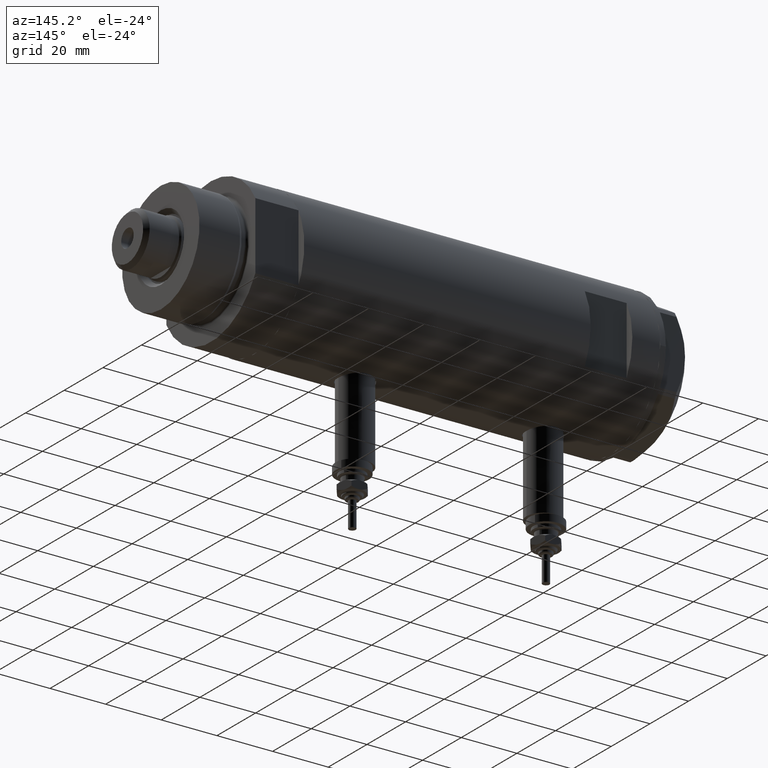
[diagram: clean part render]
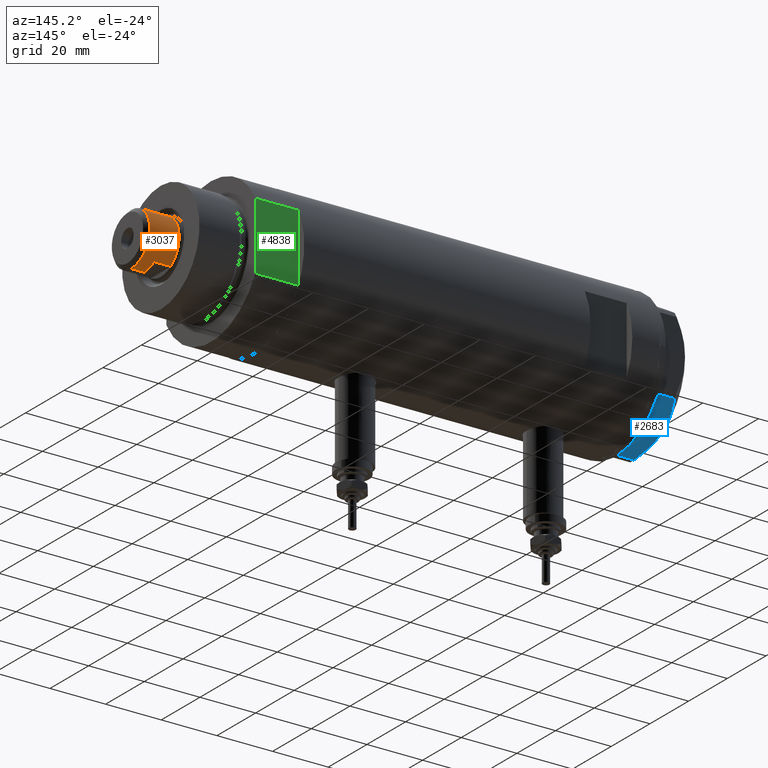
[diagram: same view with three faces highlighted in distinct colors, each labeled with its STEP entity id]
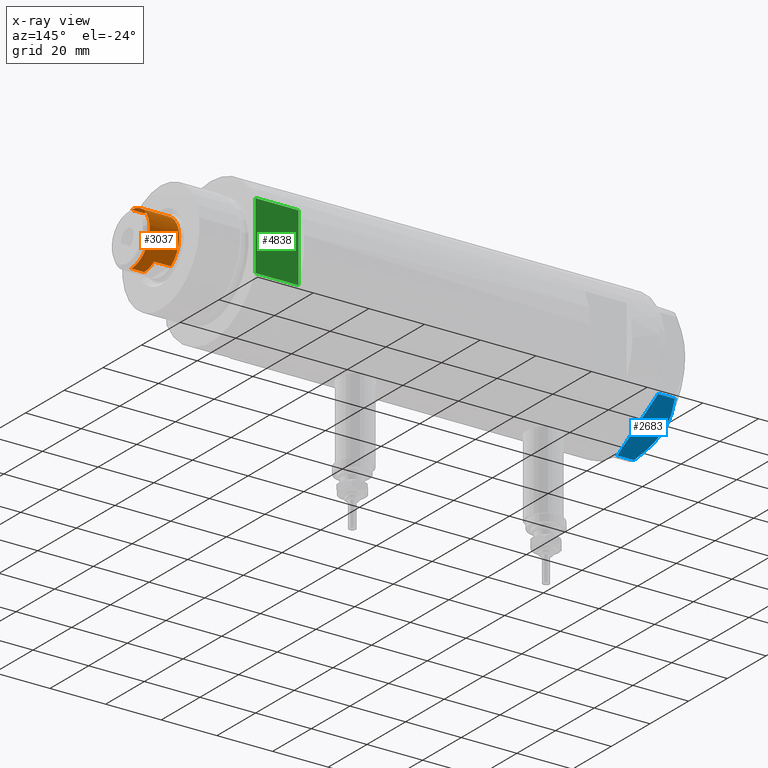
[diagram: x-ray of the same camera — body ghosted, the three highlighted faces saturated]
A machine part, auxiliary view with three faces highlighted in distinct colors.
The next image is the same camera in x-ray (body ghosted, the three faces saturated) — at least one of them is partly hidden behind the body in this view.
Their STEP definitions:

[orange] entity #3037 — the highlighted cylindrical surface (edge-blend (fillet) strip) has radius 9.5 mm, axis along (-1, -0, 0).
#23 = CYLINDRICAL_SURFACE ( 'NONE', #3996, 9.500000000000001776 ) ;
#81 = LINE ( 'NONE', #1457, #4299 ) ;
#235 = DIRECTION ( 'NONE',  ( 0.000000000000000000, 0.000000000000000000, -1.000000000000000000 ) ) ;
#272 = CIRCLE ( 'NONE', #3850, 9.500000000000000000 ) ;
#284 = CARTESIAN_POINT ( 'NONE',  ( 0.000000000000000000, 0.000000000000000000, 137.5999999999999943 ) ) ;
#561 = VERTEX_POINT ( 'NONE', #5441 ) ;
#659 = EDGE_CURVE ( 'NONE', #561, #1253, #2412, .T. ) ;
#689 = CARTESIAN_POINT ( 'NONE',  ( 0.000000000000000000, 0.000000000000000000, 143.5999999999999943 ) ) ;
#694 = ORIENTED_EDGE ( 'NONE', *, *, #2219, .T. ) ;
#917 = VERTEX_POINT ( 'NONE', #3805 ) ;
#967 = CARTESIAN_POINT ( 'NONE',  ( -7.982950582334829015, 5.150000000000015454, 137.5999999999999943 ) ) ;
#1253 = VERTEX_POINT ( 'NONE', #2085 ) ;
#1262 = DIRECTION ( 'NONE',  ( -0.000000000000000000, -0.000000000000000000, -1.000000000000000000 ) ) ;
#1457 = CARTESIAN_POINT ( 'NONE',  ( -7.982950582334830791, 5.149999999999999467, 143.5999999999999943 ) ) ;
#1526 = FACE_OUTER_BOUND ( 'NONE', #1671, .T. ) ;
#1630 = CARTESIAN_POINT ( 'NONE',  ( 0.000000000000000000, 0.000000000000000000, 143.5999999999999943 ) ) ;
#1649 = VERTEX_POINT ( 'NONE', #4833 ) ;
#1670 = CARTESIAN_POINT ( 'NONE',  ( 0.000000000000000000, 0.000000000000000000, 148.1999999999999886 ) ) ;
#1671 = EDGE_LOOP ( 'NONE', ( #4125, #6309, #694, #6164, #3651, #2536, #2320, #5703 ) ) ;
#1681 = LINE ( 'NONE', #4090, #2248 ) ;
#1713 = VERTEX_POINT ( 'NONE', #4072 ) ;
#1758 = CIRCLE ( 'NONE', #4935, 9.500000000000000000 ) ;
#1777 = CARTESIAN_POINT ( 'NONE',  ( 7.982950582334830791, 5.149999999999999467, 143.5999999999999943 ) ) ;
#1860 = EDGE_CURVE ( 'NONE', #1713, #1964, #2811, .T. ) ;
#1925 = EDGE_CURVE ( 'NONE', #561, #1649, #1986, .T. ) ;
#1941 = VERTEX_POINT ( 'NONE', #2945 ) ;
#1964 = VERTEX_POINT ( 'NONE', #967 ) ;
#1986 = LINE ( 'NONE', #4370, #2716 ) ;
#2085 = CARTESIAN_POINT ( 'NONE',  ( 9.500000000000001776, 1.163414459189985682E-15, 148.1999999999999886 ) ) ;
#2219 = EDGE_CURVE ( 'NONE', #1941, #5459, #272, .T. ) ;
#2248 = VECTOR ( 'NONE', #1262, 1000.000000000000000 ) ;
#2320 = ORIENTED_EDGE ( 'NONE', *, *, #2533, .T. ) ;
#2412 = CIRCLE ( 'NONE', #5171, 9.500000000000001776 ) ;
#2486 = CARTESIAN_POINT ( 'NONE',  ( 0.000000000000000000, 0.000000000000000000, 143.5999999999999943 ) ) ;
#2520 = DIRECTION ( 'NONE',  ( -0.000000000000000000, -0.000000000000000000, -1.000000000000000000 ) ) ;
#2533 = EDGE_CURVE ( 'NONE', #917, #1649, #1758, .T. ) ;
#2536 = ORIENTED_EDGE ( 'NONE', *, *, #3473, .F. ) ;
#2716 = VECTOR ( 'NONE', #4500, 1000.000000000000000 ) ;
#2811 = CIRCLE ( 'NONE', #4459, 9.500000000000008882 ) ;
#2945 = CARTESIAN_POINT ( 'NONE',  ( 9.500000000000000000, 1.163414459189985485E-15, 143.5999999999999943 ) ) ;
#3037 = ADVANCED_FACE ( 'NONE', ( #1526 ), #23, .T. ) ;
#3058 = EDGE_CURVE ( 'NONE', #5459, #1713, #4602, .T. ) ;
#3172 = VECTOR ( 'NONE', #5139, 1000.000000000000000 ) ;
#3461 = DIRECTION ( 'NONE',  ( 0.000000000000000000, 0.000000000000000000, 1.000000000000000000 ) ) ;
#3473 = EDGE_CURVE ( 'NONE', #917, #1964, #81, .T. ) ;
#3651 = ORIENTED_EDGE ( 'NONE', *, *, #1860, .T. ) ;
#3805 = CARTESIAN_POINT ( 'NONE',  ( -7.982950582334830791, 5.149999999999999467, 143.5999999999999943 ) ) ;
#3850 = AXIS2_PLACEMENT_3D ( 'NONE', #689, #4564, #5512 ) ;
#3996 = AXIS2_PLACEMENT_3D ( 'NONE', #2486, #2520, #4445 ) ;
#4072 = CARTESIAN_POINT ( 'NONE',  ( 7.982950582334830791, 5.149999999999999467, 137.5999999999999943 ) ) ;
#4090 = CARTESIAN_POINT ( 'NONE',  ( 9.500000000000001776, 1.163414459189985682E-15, 143.5999999999999943 ) ) ;
#4125 = ORIENTED_EDGE ( 'NONE', *, *, #659, .T. ) ;
#4299 = VECTOR ( 'NONE', #5009, 1000.000000000000000 ) ;
#4370 = CARTESIAN_POINT ( 'NONE',  ( -9.500000000000001776, 0.000000000000000000, 143.5999999999999943 ) ) ;
#4445 = DIRECTION ( 'NONE',  ( -1.000000000000000000, 0.000000000000000000, 0.000000000000000000 ) ) ;
#4459 = AXIS2_PLACEMENT_3D ( 'NONE', #284, #5170, #5143 ) ;
#4500 = DIRECTION ( 'NONE',  ( -0.000000000000000000, -0.000000000000000000, -1.000000000000000000 ) ) ;
#4564 = DIRECTION ( 'NONE',  ( 0.000000000000000000, 0.000000000000000000, 1.000000000000000000 ) ) ;
#4602 = LINE ( 'NONE', #1777, #3172 ) ;
#4833 = CARTESIAN_POINT ( 'NONE',  ( -9.500000000000000000, 0.000000000000000000, 143.5999999999999943 ) ) ;
#4935 = AXIS2_PLACEMENT_3D ( 'NONE', #1630, #3461, #5914 ) ;
#5005 = CARTESIAN_POINT ( 'NONE',  ( 7.982950582334830791, 5.149999999999999467, 143.5999999999999943 ) ) ;
#5009 = DIRECTION ( 'NONE',  ( -0.000000000000000000, -0.000000000000000000, -1.000000000000000000 ) ) ;
#5139 = DIRECTION ( 'NONE',  ( -0.000000000000000000, -0.000000000000000000, -1.000000000000000000 ) ) ;
#5143 = DIRECTION ( 'NONE',  ( 1.000000000000000000, 0.000000000000000000, 0.000000000000000000 ) ) ;
#5170 = DIRECTION ( 'NONE',  ( 0.000000000000000000, 0.000000000000000000, 1.000000000000000000 ) ) ;
#5171 = AXIS2_PLACEMENT_3D ( 'NONE', #1670, #235, #6053 ) ;
#5182 = EDGE_CURVE ( 'NONE', #1253, #1941, #1681, .T. ) ;
#5441 = CARTESIAN_POINT ( 'NONE',  ( -9.500000000000001776, 0.000000000000000000, 148.1999999999999886 ) ) ;
#5459 = VERTEX_POINT ( 'NONE', #5005 ) ;
#5512 = DIRECTION ( 'NONE',  ( 1.000000000000000000, 0.000000000000000000, 0.000000000000000000 ) ) ;
#5703 = ORIENTED_EDGE ( 'NONE', *, *, #1925, .F. ) ;
#5914 = DIRECTION ( 'NONE',  ( 1.000000000000000000, 0.000000000000000000, 0.000000000000000000 ) ) ;
#6053 = DIRECTION ( 'NONE',  ( 1.000000000000000000, 0.000000000000000000, 0.000000000000000000 ) ) ;
#6164 = ORIENTED_EDGE ( 'NONE', *, *, #3058, .T. ) ;
#6309 = ORIENTED_EDGE ( 'NONE', *, *, #5182, .T. ) ;

[blue] entity #2683 — the highlighted planar face has unit normal (0, -0.5, 0.866).
#195 = ORIENTED_EDGE ( 'NONE', *, *, #4334, .T. ) ;
#316 = DIRECTION ( 'NONE',  ( -0.4999999999999949485, -0.8660254037844415942, 0.000000000000000000 ) ) ;
#352 = LINE ( 'NONE', #1371, #3285 ) ;
#403 = CARTESIAN_POINT ( 'NONE',  ( 0.9699484522385767304, 25.99811238272274849, 5.983800287807627960 ) ) ;
#559 = CARTESIAN_POINT ( 'NONE',  ( 0.9999999999999297229, 25.98076211353316722, 0.000000000000000000 ) ) ;
#655 = CARTESIAN_POINT ( 'NONE',  ( 9.678244919010086988, 20.97037507344920826, 9.000000000000001776 ) ) ;
#680 = VECTOR ( 'NONE', #3693, 1000.000000000000000 ) ;
#687 = CARTESIAN_POINT ( 'NONE',  ( 5.229981517798067081, 23.53858114556529912, 7.892128867758392730 ) ) ;
#791 = PLANE ( 'NONE',  #3396 ) ;
#902 = ORIENTED_EDGE ( 'NONE', *, *, #2596, .F. ) ;
#1018 = CARTESIAN_POINT ( 'NONE',  ( 11.95865151389051917, 19.65378171203322566, 9.000000000000005329 ) ) ;
#1116 = VERTEX_POINT ( 'NONE', #2904 ) ;
#1122 = LINE ( 'NONE', #5951, #1322 ) ;
#1131 = CARTESIAN_POINT ( 'NONE',  ( 3.925137811030050994, 24.29193301091819635, 7.397272853991373687 ) ) ;
#1157 = CARTESIAN_POINT ( 'NONE',  ( 15.16323225988329959, 17.80361615569442790, 8.637313967156861949 ) ) ;
#1221 = CARTESIAN_POINT ( 'NONE',  ( 5.671686373602799591, 23.28356272816407824, 8.040681765829278405 ) ) ;
#1259 = LINE ( 'NONE', #3274, #2565 ) ;
#1322 = VECTOR ( 'NONE', #1571, 999.9999999999998863 ) ;
#1371 = CARTESIAN_POINT ( 'NONE',  ( 22.03005154776124286, 13.83905619136163168, 9.000000000000000000 ) ) ;
#1492 = VERTEX_POINT ( 'NONE', #3777 ) ;
#1512 = ORIENTED_EDGE ( 'NONE', *, *, #2335, .T. ) ;
#1534 = CARTESIAN_POINT ( 'NONE',  ( 16.05322244309623869, 17.28978008384030929, 8.426899937603700153 ) ) ;
#1571 = DIRECTION ( 'NONE',  ( -0.8660254037844415942, 0.4999999999999949485, 0.000000000000000000 ) ) ;
#1612 = CARTESIAN_POINT ( 'NONE',  ( 2.640413878806739945, 25.03366871902167290, 6.844201024438365089 ) ) ;
#1690 = CARTESIAN_POINT ( 'NONE',  ( 22.03005154776124286, 13.83905619136163168, 0.000000000000000000 ) ) ;
#1705 = CARTESIAN_POINT ( 'NONE',  ( 11.49999999999990408, 19.91858428704219364, 9.000000000000000000 ) ) ;
#1733 = CARTESIAN_POINT ( 'NONE',  ( 0.9699484522385816154, 25.99811238272274494, 9.000000000000000000 ) ) ;
#1766 = B_SPLINE_CURVE_WITH_KNOTS ( 'NONE', 3,
 ( #1705, #655, #2634, #1221, #687, #3176, #1131, #1612, #3047, #5509 ),
 .UNSPECIFIED., .F., .F.,
 ( 4, 2, 2, 2, 4 ),
 ( 0.01376519981810293489, 0.01998941321701561136, 0.02154546656674377961, 0.02310151991647194786, 0.02621362661592828783 ),
 .UNSPECIFIED. ) ;
#1900 = VERTEX_POINT ( 'NONE', #1690 ) ;
#1953 = ORIENTED_EDGE ( 'NONE', *, *, #4148, .T. ) ;
#2126 = LINE ( 'NONE', #1733, #680 ) ;
#2141 = VERTEX_POINT ( 'NONE', #559 ) ;
#2254 = EDGE_CURVE ( 'NONE', #4244, #4884, #2126, .T. ) ;
#2284 = DIRECTION ( 'NONE',  ( -0.8660254037844415942, 0.4999999999999949485, 0.000000000000000000 ) ) ;
#2335 = EDGE_CURVE ( 'NONE', #1900, #5153, #5096, .T. ) ;
#2565 = VECTOR ( 'NONE', #2284, 999.9999999999998863 ) ;
#2596 = EDGE_CURVE ( 'NONE', #1492, #1116, #4121, .T. ) ;
#2634 = CARTESIAN_POINT ( 'NONE',  ( 7.884645426989626671, 22.00591022298560517, 8.707651728476925257 ) ) ;
#2663 = DIRECTION ( 'NONE',  ( -0.8660254037844415942, 0.4999999999999949485, 0.000000000000000000 ) ) ;
#2683 = ADVANCED_FACE ( 'NONE', ( #3139 ), #791, .F. ) ;
#2739 = DIRECTION ( 'NONE',  ( 0.8660254037844415942, -0.4999999999999949485, 0.000000000000000000 ) ) ;
#2904 = CARTESIAN_POINT ( 'NONE',  ( 11.49999999999990408, 19.91858428704219364, 9.000000000000000000 ) ) ;
#2969 = CARTESIAN_POINT ( 'NONE',  ( 12.41906678023027588, 19.38796083407295967, 8.981686407609410949 ) ) ;
#3047 = CARTESIAN_POINT ( 'NONE',  ( 1.799196345396824492, 25.51934588838292228, 6.431317509509382191 ) ) ;
#3072 = CARTESIAN_POINT ( 'NONE',  ( 11.49999999999990408, 19.91858428704219364, 9.000000000000000000 ) ) ;
#3139 = FACE_OUTER_BOUND ( 'NONE', #6111, .T. ) ;
#3176 = CARTESIAN_POINT ( 'NONE',  ( 4.357207709416038632, 24.04247733877631532, 7.570552255229681116 ) ) ;
#3274 = CARTESIAN_POINT ( 'NONE',  ( 22.99999999999981171, 13.27905619136164184, 0.000000000000000000 ) ) ;
#3285 = VECTOR ( 'NONE', #3871, 1000.000000000000000 ) ;
#3396 = AXIS2_PLACEMENT_3D ( 'NONE', #5088, #316, #2739 ) ;
#3564 = CARTESIAN_POINT ( 'NONE',  ( 18.67981377008996446, 15.77331687414937278, 7.629374868826049649 ) ) ;
#3609 = CARTESIAN_POINT ( 'NONE',  ( 22.99999999999981171, 13.27905619136164184, 0.000000000000000000 ) ) ;
#3681 = CARTESIAN_POINT ( 'NONE',  ( 0.9699484522385816154, 25.99811238272274494, 0.000000000000000000 ) ) ;
#3693 = DIRECTION ( 'NONE',  ( 0.000000000000000000, 0.000000000000000000, 1.000000000000000000 ) ) ;
#3777 = CARTESIAN_POINT ( 'NONE',  ( 22.03005154776138852, 13.83905619136154819, 5.983800287807532037 ) ) ;
#3837 = ORIENTED_EDGE ( 'NONE', *, *, #5504, .F. ) ;
#3871 = DIRECTION ( 'NONE',  ( 0.000000000000000000, 0.000000000000000000, -1.000000000000000000 ) ) ;
#3961 = EDGE_CURVE ( 'NONE', #5153, #2141, #1259, .T. ) ;
#4121 = B_SPLINE_CURVE_WITH_KNOTS ( 'NONE', 3,
 ( #5534, #5981, #3564, #1534, #1157, #6012, #5467, #2969, #1018, #3072 ),
 .UNSPECIFIED., .F., .F.,
 ( 4, 2, 2, 2, 4 ),
 ( 0.001228959670438493522, 0.007497079744270714746, 0.01063113978118682655, 0.01219816979964488159, 0.01376519981810293489 ),
 .UNSPECIFIED. ) ;
#4148 = EDGE_CURVE ( 'NONE', #2141, #4244, #1122, .T. ) ;
#4223 = VECTOR ( 'NONE', #2663, 999.9999999999998863 ) ;
#4244 = VERTEX_POINT ( 'NONE', #3681 ) ;
#4334 = EDGE_CURVE ( 'NONE', #1492, #1900, #352, .T. ) ;
#4884 = VERTEX_POINT ( 'NONE', #403 ) ;
#5047 = CARTESIAN_POINT ( 'NONE',  ( 21.99999999999987210, 13.85640646055121827, 0.000000000000000000 ) ) ;
#5088 = CARTESIAN_POINT ( 'NONE',  ( 22.99999999999981171, 13.27905619136164184, 9.000000000000000000 ) ) ;
#5096 = LINE ( 'NONE', #3609, #4223 ) ;
#5153 = VERTEX_POINT ( 'NONE', #5047 ) ;
#5303 = ORIENTED_EDGE ( 'NONE', *, *, #3961, .T. ) ;
#5316 = ORIENTED_EDGE ( 'NONE', *, *, #2254, .T. ) ;
#5467 = CARTESIAN_POINT ( 'NONE',  ( 13.34348161667005073, 18.85424967941157703, 8.907842277728345692 ) ) ;
#5504 = EDGE_CURVE ( 'NONE', #1116, #4884, #1766, .T. ) ;
#5509 = CARTESIAN_POINT ( 'NONE',  ( 0.9699484522385767304, 25.99811238272274849, 5.983800287807627960 ) ) ;
#5534 = CARTESIAN_POINT ( 'NONE',  ( 22.03005154776138852, 13.83905619136154819, 5.983800287807532037 ) ) ;
#5951 = CARTESIAN_POINT ( 'NONE',  ( 22.99999999999981171, 13.27905619136164184, 0.000000000000000000 ) ) ;
#5981 = CARTESIAN_POINT ( 'NONE',  ( 20.37350567916420019, 14.79546339452108050, 6.877782426143415506 ) ) ;
#6012 = CARTESIAN_POINT ( 'NONE',  ( 13.80210138309697498, 18.58946543380931260, 8.852712638955710034 ) ) ;
#6111 = EDGE_LOOP ( 'NONE', ( #902, #195, #1512, #5303, #1953, #5316, #3837 ) ) ;

[green] entity #4838 — the highlighted planar face has unit normal (0, -1, -0).
#69 = EDGE_CURVE ( 'NONE', #6188, #74, #5842, .T. ) ;
#74 = VERTEX_POINT ( 'NONE', #2419 ) ;
#161 = ORIENTED_EDGE ( 'NONE', *, *, #3844, .T. ) ;
#357 = ORIENTED_EDGE ( 'NONE', *, *, #5918, .T. ) ;
#364 = ORIENTED_EDGE ( 'NONE', *, *, #5465, .F. ) ;
#871 = ORIENTED_EDGE ( 'NONE', *, *, #69, .F. ) ;
#901 = VERTEX_POINT ( 'NONE', #3680 ) ;
#1344 = VECTOR ( 'NONE', #4479, 1000.000000000000000 ) ;
#1423 = FACE_OUTER_BOUND ( 'NONE', #3156, .T. ) ;
#2419 = CARTESIAN_POINT ( 'NONE',  ( 12.12435565298214790, 23.00000000000000355, 15.50000000000000000 ) ) ;
#2603 = DIRECTION ( 'NONE',  ( 1.000000000000000000, 0.000000000000000000, 0.000000000000000000 ) ) ;
#2690 = VERTEX_POINT ( 'NONE', #6169 ) ;
#2730 = CARTESIAN_POINT ( 'NONE',  ( 12.12435565298214080, 23.00000000000000355, 0.000000000000000000 ) ) ;
#3044 = CARTESIAN_POINT ( 'NONE',  ( -12.12435565298215145, 23.00000000000000355, 0.000000000000000000 ) ) ;
#3156 = EDGE_LOOP ( 'NONE', ( #357, #871, #364, #161 ) ) ;
#3171 = AXIS2_PLACEMENT_3D ( 'NONE', #3379, #6261, #4762 ) ;
#3353 = CARTESIAN_POINT ( 'NONE',  ( 12.12435565298215323, 23.00000000000000355, 0.000000000000000000 ) ) ;
#3379 = CARTESIAN_POINT ( 'NONE',  ( -12.12435565298215145, 23.00000000000000355, 0.000000000000000000 ) ) ;
#3500 = DIRECTION ( 'NONE',  ( -0.000000000000000000, -0.000000000000000000, 1.000000000000000000 ) ) ;
#3552 = CARTESIAN_POINT ( 'NONE',  ( -12.12435565298215145, 23.00000000000000355, 15.50000000000000000 ) ) ;
#3680 = CARTESIAN_POINT ( 'NONE',  ( -12.12435565298215145, 23.00000000000000355, 0.000000000000000000 ) ) ;
#3844 = EDGE_CURVE ( 'NONE', #901, #2690, #5920, .T. ) ;
#3967 = DIRECTION ( 'NONE',  ( -0.000000000000000000, -0.000000000000000000, 1.000000000000000000 ) ) ;
#4051 = CARTESIAN_POINT ( 'NONE',  ( -12.12435565298215145, 23.00000000000000355, 0.000000000000000000 ) ) ;
#4261 = VECTOR ( 'NONE', #3967, 1000.000000000000000 ) ;
#4479 = DIRECTION ( 'NONE',  ( 1.000000000000000000, 0.000000000000000000, 0.000000000000000000 ) ) ;
#4762 = DIRECTION ( 'NONE',  ( 0.000000000000000000, -0.000000000000000000, -1.000000000000000000 ) ) ;
#4838 = ADVANCED_FACE ( 'NONE', ( #1423 ), #5197, .F. ) ;
#5116 = VECTOR ( 'NONE', #3500, 1000.000000000000000 ) ;
#5197 = PLANE ( 'NONE',  #3171 ) ;
#5465 = EDGE_CURVE ( 'NONE', #901, #6188, #6112, .T. ) ;
#5842 = LINE ( 'NONE', #3353, #4261 ) ;
#5918 = EDGE_CURVE ( 'NONE', #2690, #74, #6321, .T. ) ;
#5920 = LINE ( 'NONE', #3044, #5116 ) ;
#5937 = VECTOR ( 'NONE', #2603, 1000.000000000000000 ) ;
#6112 = LINE ( 'NONE', #4051, #5937 ) ;
#6169 = CARTESIAN_POINT ( 'NONE',  ( -12.12435565298214613, 23.00000000000000355, 15.50000000000000000 ) ) ;
#6188 = VERTEX_POINT ( 'NONE', #2730 ) ;
#6261 = DIRECTION ( 'NONE',  ( 0.000000000000000000, -1.000000000000000000, 0.000000000000000000 ) ) ;
#6321 = LINE ( 'NONE', #3552, #1344 ) ;